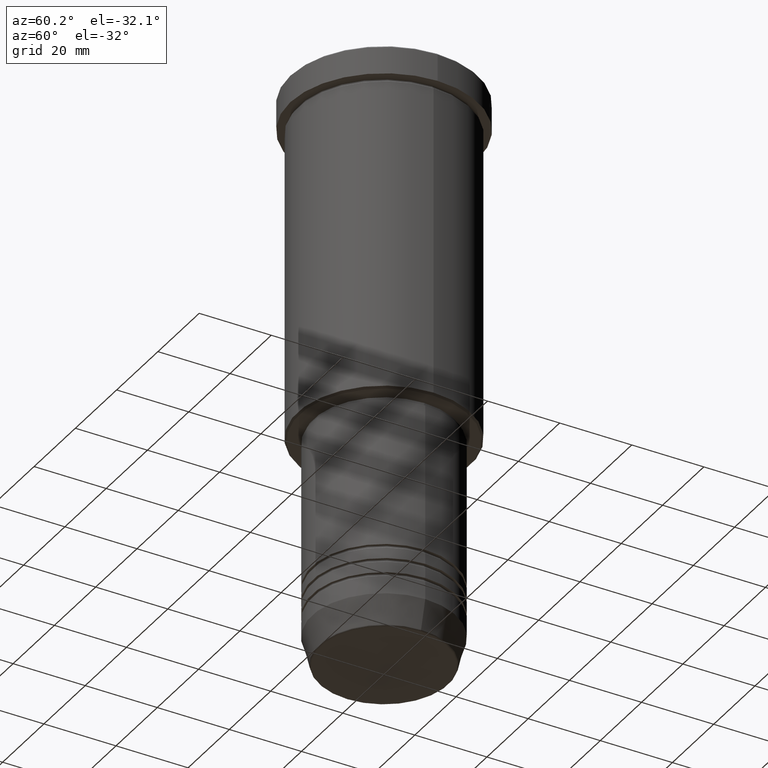
[diagram: clean part render]
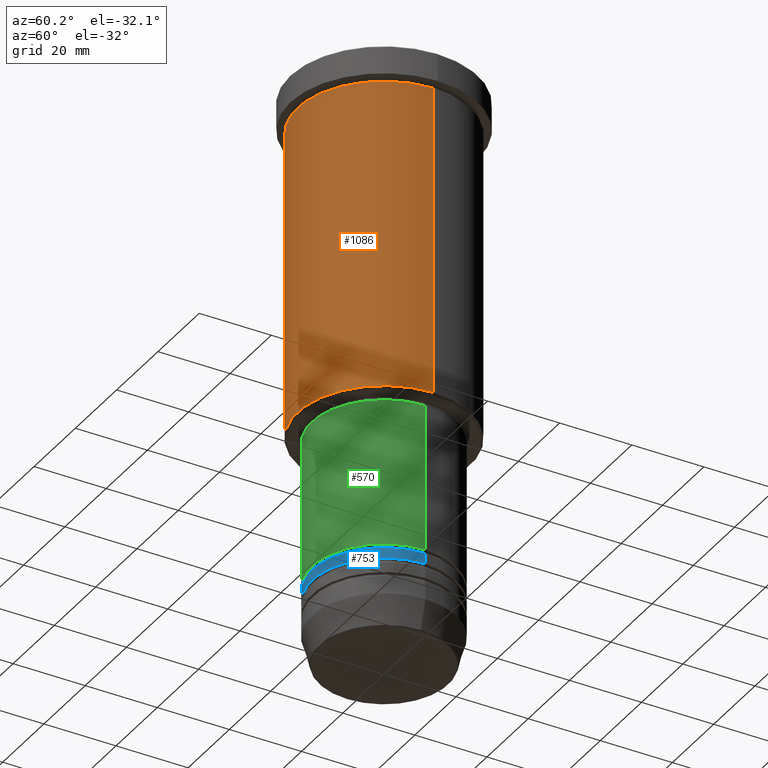
[diagram: same view with three faces highlighted in distinct colors, each labeled with its STEP entity id]
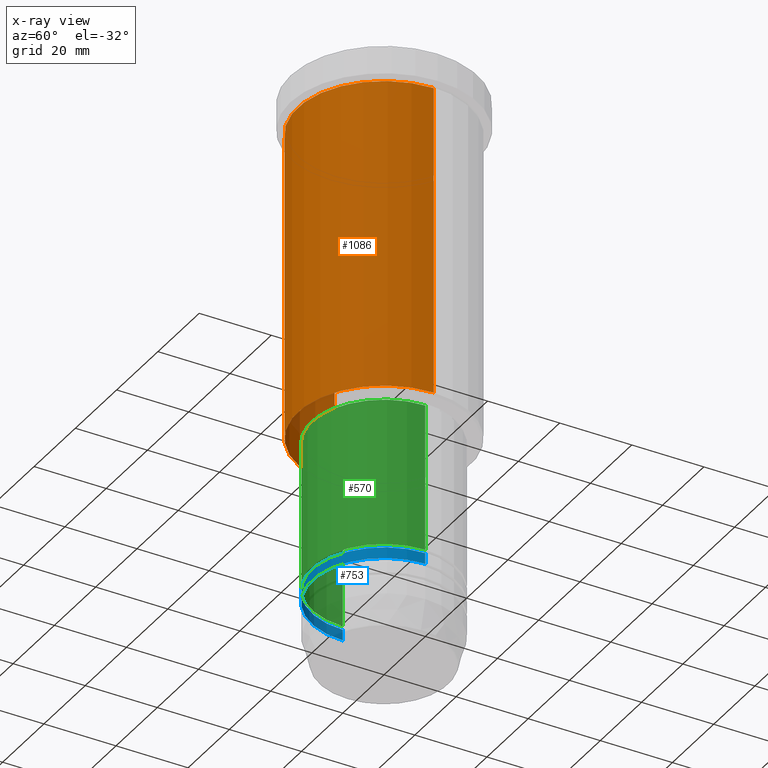
[diagram: x-ray of the same camera — body ghosted, the three highlighted faces saturated]
A machine part, auxiliary view with three faces highlighted in distinct colors.
The next image is the same camera in x-ray (body ghosted, the three faces saturated) — at least one of them is partly hidden behind the body in this view.
Their STEP definitions:

[orange] entity #1086 — the highlighted cylindrical surface (partial cylindrical patch) has radius 24 mm, axis along (-0, -0, 1).
#79 = DIRECTION ( 'NONE',  ( 1.000000000000000000, 0.000000000000000000, 0.000000000000000000 ) ) ;
#97 = CARTESIAN_POINT ( 'NONE',  ( -24.00000000000000000, 2.939152317953647894E-15, -8.999999999999994671 ) ) ;
#157 = CARTESIAN_POINT ( 'NONE',  ( 24.00000000000000000, 0.000000000000000000, 0.000000000000000000 ) ) ;
#188 = CARTESIAN_POINT ( 'NONE',  ( 0.000000000000000000, 0.000000000000000000, -95.49999999999997158 ) ) ;
#235 = CARTESIAN_POINT ( 'NONE',  ( 0.000000000000000000, 0.000000000000000000, 0.000000000000000000 ) ) ;
#262 = VERTEX_POINT ( 'NONE', #958 ) ;
#267 = VERTEX_POINT ( 'NONE', #770 ) ;
#315 = ORIENTED_EDGE ( 'NONE', *, *, #1008, .F. ) ;
#433 = DIRECTION ( 'NONE',  ( -0.000000000000000000, -0.000000000000000000, 1.000000000000000000 ) ) ;
#468 = AXIS2_PLACEMENT_3D ( 'NONE', #911, #843, #79 ) ;
#503 = EDGE_CURVE ( 'NONE', #764, #267, #728, .T. ) ;
#511 = FACE_OUTER_BOUND ( 'NONE', #883, .T. ) ;
#558 = DIRECTION ( 'NONE',  ( -0.000000000000000000, -0.000000000000000000, 1.000000000000000000 ) ) ;
#596 = ORIENTED_EDGE ( 'NONE', *, *, #629, .T. ) ;
#603 = ORIENTED_EDGE ( 'NONE', *, *, #828, .T. ) ;
#610 = CARTESIAN_POINT ( 'NONE',  ( -24.00000000000000000, 2.939152317953647894E-15, 0.000000000000000000 ) ) ;
#617 = CARTESIAN_POINT ( 'NONE',  ( 24.00000000000000000, 0.000000000000000000, -95.49999999999997158 ) ) ;
#629 = EDGE_CURVE ( 'NONE', #648, #267, #1070, .T. ) ;
#648 = VERTEX_POINT ( 'NONE', #617 ) ;
#668 = ORIENTED_EDGE ( 'NONE', *, *, #503, .F. ) ;
#692 = LINE ( 'NONE', #610, #1168 ) ;
#699 = DIRECTION ( 'NONE',  ( -0.000000000000000000, -0.000000000000000000, 1.000000000000000000 ) ) ;
#707 = AXIS2_PLACEMENT_3D ( 'NONE', #235, #699, #1059 ) ;
#709 = CYLINDRICAL_SURFACE ( 'NONE', #707, 24.00000000000000000 ) ;
#728 = CIRCLE ( 'NONE', #468, 24.00000000000000000 ) ;
#763 = CIRCLE ( 'NONE', #809, 24.00000000000000000 ) ;
#764 = VERTEX_POINT ( 'NONE', #97 ) ;
#770 = CARTESIAN_POINT ( 'NONE',  ( 24.00000000000000000, 0.000000000000000000, -8.999999999999994671 ) ) ;
#809 = AXIS2_PLACEMENT_3D ( 'NONE', #188, #558, #858 ) ;
#812 = DIRECTION ( 'NONE',  ( -0.000000000000000000, -0.000000000000000000, 1.000000000000000000 ) ) ;
#826 = VECTOR ( 'NONE', #433, 1000.000000000000000 ) ;
#828 = EDGE_CURVE ( 'NONE', #262, #648, #763, .T. ) ;
#843 = DIRECTION ( 'NONE',  ( -0.000000000000000000, -0.000000000000000000, 1.000000000000000000 ) ) ;
#858 = DIRECTION ( 'NONE',  ( -1.000000000000000000, 0.000000000000000000, 0.000000000000000000 ) ) ;
#883 = EDGE_LOOP ( 'NONE', ( #315, #603, #596, #668 ) ) ;
#911 = CARTESIAN_POINT ( 'NONE',  ( 0.000000000000000000, 0.000000000000000000, -8.999999999999994671 ) ) ;
#958 = CARTESIAN_POINT ( 'NONE',  ( -24.00000000000000000, 2.939152317953647894E-15, -95.49999999999997158 ) ) ;
#1008 = EDGE_CURVE ( 'NONE', #262, #764, #692, .T. ) ;
#1059 = DIRECTION ( 'NONE',  ( 1.000000000000000000, 0.000000000000000000, 0.000000000000000000 ) ) ;
#1070 = LINE ( 'NONE', #157, #826 ) ;
#1086 = ADVANCED_FACE ( 'NONE', ( #511 ), #709, .T. ) ;
#1168 = VECTOR ( 'NONE', #812, 1000.000000000000000 ) ;

[blue] entity #753 — the highlighted cylindrical surface (partial cylindrical patch) has radius 20 mm, axis along (-0, -0, 1).
#36 = EDGE_CURVE ( 'NONE', #297, #92, #804, .T. ) ;
#58 = CARTESIAN_POINT ( 'NONE',  ( 0.000000000000000000, 0.000000000000000000, -142.0000000000000000 ) ) ;
#92 = VERTEX_POINT ( 'NONE', #249 ) ;
#117 = ORIENTED_EDGE ( 'NONE', *, *, #36, .F. ) ;
#122 = EDGE_CURVE ( 'NONE', #1073, #92, #1161, .T. ) ;
#174 = DIRECTION ( 'NONE',  ( -0.000000000000000000, -0.000000000000000000, 1.000000000000000000 ) ) ;
#193 = DIRECTION ( 'NONE',  ( -0.000000000000000000, -0.000000000000000000, 1.000000000000000000 ) ) ;
#199 = VECTOR ( 'NONE', #624, 1000.000000000000000 ) ;
#227 = CARTESIAN_POINT ( 'NONE',  ( 20.00000000000000355, 0.000000000000000000, -142.0000000000000000 ) ) ;
#232 = LINE ( 'NONE', #985, #199 ) ;
#249 = CARTESIAN_POINT ( 'NONE',  ( 20.00000000000000000, 0.000000000000000000, -138.9999999999999716 ) ) ;
#297 = VERTEX_POINT ( 'NONE', #606 ) ;
#325 = EDGE_CURVE ( 'NONE', #998, #297, #232, .T. ) ;
#444 = AXIS2_PLACEMENT_3D ( 'NONE', #1088, #620, #834 ) ;
#456 = FACE_OUTER_BOUND ( 'NONE', #776, .T. ) ;
#489 = AXIS2_PLACEMENT_3D ( 'NONE', #736, #193, #631 ) ;
#522 = ORIENTED_EDGE ( 'NONE', *, *, #325, .F. ) ;
#563 = CYLINDRICAL_SURFACE ( 'NONE', #489, 20.00000000000000355 ) ;
#606 = CARTESIAN_POINT ( 'NONE',  ( -20.00000000000000000, 2.449293598294706513E-15, -138.9999999999999716 ) ) ;
#620 = DIRECTION ( 'NONE',  ( -0.000000000000000000, -0.000000000000000000, 1.000000000000000000 ) ) ;
#624 = DIRECTION ( 'NONE',  ( -0.000000000000000000, -0.000000000000000000, 1.000000000000000000 ) ) ;
#631 = DIRECTION ( 'NONE',  ( 1.000000000000000000, 0.000000000000000000, 0.000000000000000000 ) ) ;
#633 = CARTESIAN_POINT ( 'NONE',  ( 20.00000000000000355, 0.000000000000000000, 0.000000000000000000 ) ) ;
#683 = VECTOR ( 'NONE', #174, 1000.000000000000000 ) ;
#736 = CARTESIAN_POINT ( 'NONE',  ( 0.000000000000000000, 0.000000000000000000, 0.000000000000000000 ) ) ;
#742 = ORIENTED_EDGE ( 'NONE', *, *, #122, .T. ) ;
#753 = ADVANCED_FACE ( 'NONE', ( #456 ), #563, .T. ) ;
#776 = EDGE_LOOP ( 'NONE', ( #522, #1173, #742, #117 ) ) ;
#785 = CIRCLE ( 'NONE', #878, 20.00000000000000355 ) ;
#804 = CIRCLE ( 'NONE', #444, 20.00000000000000000 ) ;
#834 = DIRECTION ( 'NONE',  ( 1.000000000000000000, 0.000000000000000000, 0.000000000000000000 ) ) ;
#878 = AXIS2_PLACEMENT_3D ( 'NONE', #58, #1048, #1143 ) ;
#985 = CARTESIAN_POINT ( 'NONE',  ( -20.00000000000000355, 2.449293598294706907E-15, 0.000000000000000000 ) ) ;
#998 = VERTEX_POINT ( 'NONE', #1135 ) ;
#1000 = EDGE_CURVE ( 'NONE', #998, #1073, #785, .T. ) ;
#1048 = DIRECTION ( 'NONE',  ( -0.000000000000000000, -0.000000000000000000, 1.000000000000000000 ) ) ;
#1073 = VERTEX_POINT ( 'NONE', #227 ) ;
#1088 = CARTESIAN_POINT ( 'NONE',  ( 0.000000000000000000, 0.000000000000000000, -138.9999999999999716 ) ) ;
#1135 = CARTESIAN_POINT ( 'NONE',  ( -20.00000000000000355, 2.449293598294706907E-15, -142.0000000000000000 ) ) ;
#1143 = DIRECTION ( 'NONE',  ( 1.000000000000000000, 0.000000000000000000, 0.000000000000000000 ) ) ;
#1161 = LINE ( 'NONE', #633, #683 ) ;
#1173 = ORIENTED_EDGE ( 'NONE', *, *, #1000, .T. ) ;

[green] entity #570 — the highlighted cylindrical surface (partial cylindrical patch) has radius 20 mm, axis along (-0, -0, 1).
#52 = VERTEX_POINT ( 'NONE', #1076 ) ;
#91 = EDGE_CURVE ( 'NONE', #1126, #956, #431, .T. ) ;
#102 = CIRCLE ( 'NONE', #1039, 20.00000000000000355 ) ;
#106 = ORIENTED_EDGE ( 'NONE', *, *, #774, .T. ) ;
#142 = FACE_OUTER_BOUND ( 'NONE', #536, .T. ) ;
#150 = DIRECTION ( 'NONE',  ( 1.000000000000000000, 0.000000000000000000, 0.000000000000000000 ) ) ;
#152 = DIRECTION ( 'NONE',  ( -0.000000000000000000, -0.000000000000000000, 1.000000000000000000 ) ) ;
#230 = CARTESIAN_POINT ( 'NONE',  ( 0.000000000000000000, 0.000000000000000000, 0.000000000000000000 ) ) ;
#261 = AXIS2_PLACEMENT_3D ( 'NONE', #276, #1090, #347 ) ;
#276 = CARTESIAN_POINT ( 'NONE',  ( 0.000000000000000000, 0.000000000000000000, -137.9999999999999716 ) ) ;
#342 = EDGE_CURVE ( 'NONE', #52, #956, #102, .T. ) ;
#343 = CARTESIAN_POINT ( 'NONE',  ( 20.00000000000000355, 0.000000000000000000, 0.000000000000000000 ) ) ;
#345 = CARTESIAN_POINT ( 'NONE',  ( 0.000000000000000000, 0.000000000000000000, -97.00000000000002842 ) ) ;
#347 = DIRECTION ( 'NONE',  ( 1.000000000000000000, 0.000000000000000000, 0.000000000000000000 ) ) ;
#431 = LINE ( 'NONE', #343, #548 ) ;
#536 = EDGE_LOOP ( 'NONE', ( #756, #106, #1027, #733 ) ) ;
#538 = DIRECTION ( 'NONE',  ( -0.000000000000000000, -0.000000000000000000, 1.000000000000000000 ) ) ;
#541 = DIRECTION ( 'NONE',  ( 1.000000000000000000, 0.000000000000000000, 0.000000000000000000 ) ) ;
#548 = VECTOR ( 'NONE', #538, 1000.000000000000000 ) ;
#555 = EDGE_CURVE ( 'NONE', #996, #52, #1044, .T. ) ;
#570 = ADVANCED_FACE ( 'NONE', ( #142 ), #702, .T. ) ;
#702 = CYLINDRICAL_SURFACE ( 'NONE', #1128, 20.00000000000000355 ) ;
#733 = ORIENTED_EDGE ( 'NONE', *, *, #342, .F. ) ;
#756 = ORIENTED_EDGE ( 'NONE', *, *, #555, .F. ) ;
#762 = VECTOR ( 'NONE', #950, 1000.000000000000000 ) ;
#774 = EDGE_CURVE ( 'NONE', #996, #1126, #1083, .T. ) ;
#775 = CARTESIAN_POINT ( 'NONE',  ( -20.00000000000000355, 2.449293598294706907E-15, 0.000000000000000000 ) ) ;
#790 = DIRECTION ( 'NONE',  ( -0.000000000000000000, -0.000000000000000000, 1.000000000000000000 ) ) ;
#829 = CARTESIAN_POINT ( 'NONE',  ( 20.00000000000000355, 0.000000000000000000, -137.9999999999999716 ) ) ;
#939 = CARTESIAN_POINT ( 'NONE',  ( 20.00000000000000355, 0.000000000000000000, -97.00000000000002842 ) ) ;
#950 = DIRECTION ( 'NONE',  ( -0.000000000000000000, -0.000000000000000000, 1.000000000000000000 ) ) ;
#956 = VERTEX_POINT ( 'NONE', #939 ) ;
#996 = VERTEX_POINT ( 'NONE', #1139 ) ;
#1027 = ORIENTED_EDGE ( 'NONE', *, *, #91, .T. ) ;
#1039 = AXIS2_PLACEMENT_3D ( 'NONE', #345, #152, #541 ) ;
#1044 = LINE ( 'NONE', #775, #762 ) ;
#1076 = CARTESIAN_POINT ( 'NONE',  ( -20.00000000000000355, 2.449293598294706907E-15, -97.00000000000002842 ) ) ;
#1083 = CIRCLE ( 'NONE', #261, 20.00000000000000355 ) ;
#1090 = DIRECTION ( 'NONE',  ( -0.000000000000000000, -0.000000000000000000, 1.000000000000000000 ) ) ;
#1126 = VERTEX_POINT ( 'NONE', #829 ) ;
#1128 = AXIS2_PLACEMENT_3D ( 'NONE', #230, #790, #150 ) ;
#1139 = CARTESIAN_POINT ( 'NONE',  ( -20.00000000000000355, 2.449293598294706907E-15, -137.9999999999999716 ) ) ;